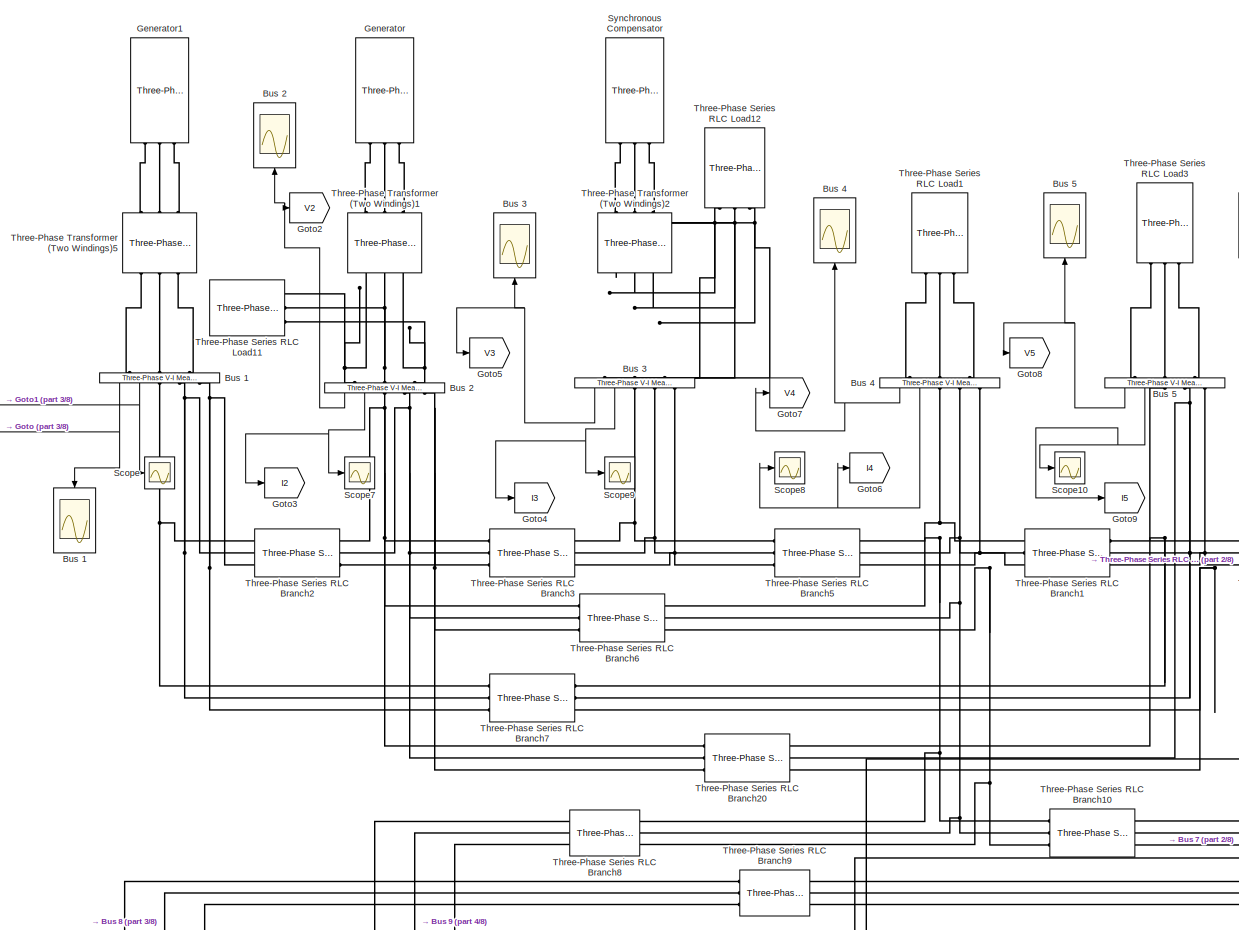
[diagram: root canvas - part 1/8, top center region]
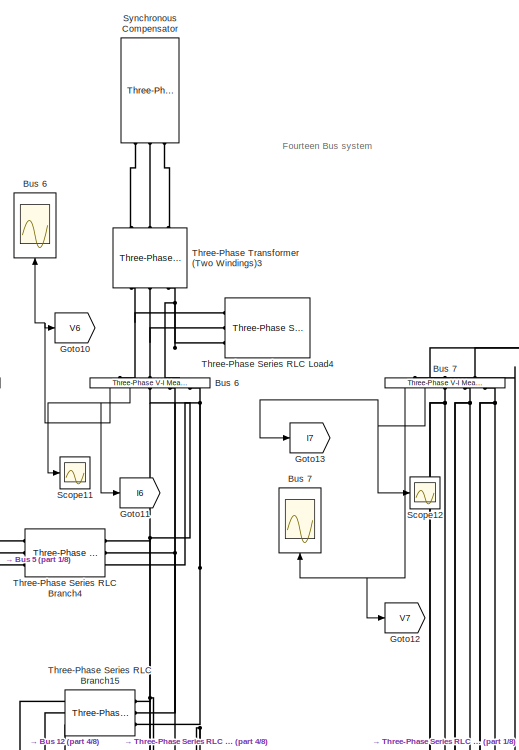
[diagram: root canvas - part 2/8, top right region]
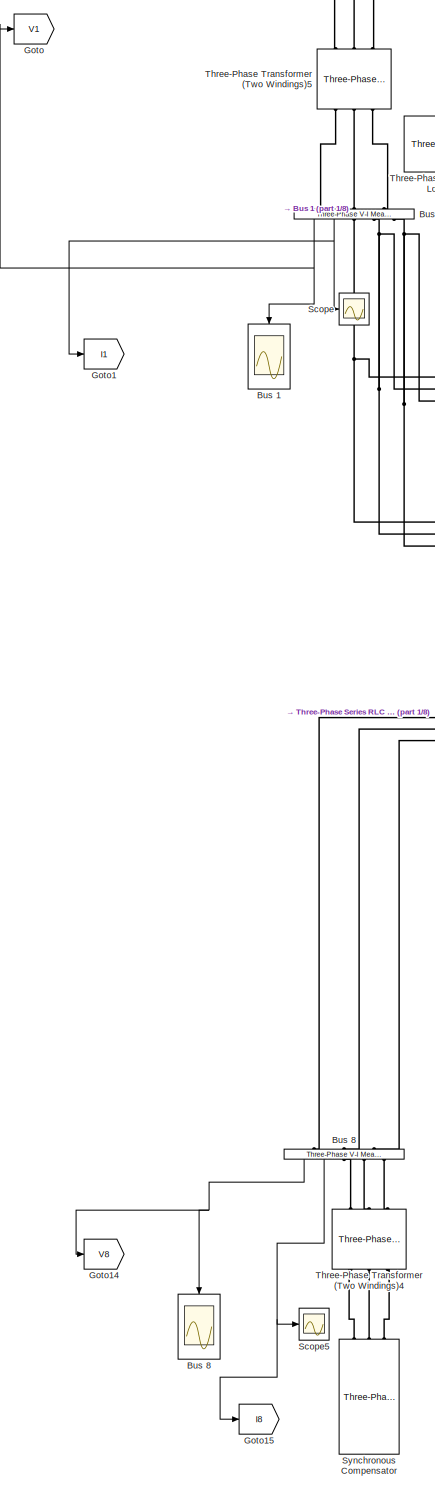
[diagram: root canvas - part 3/8, central region]
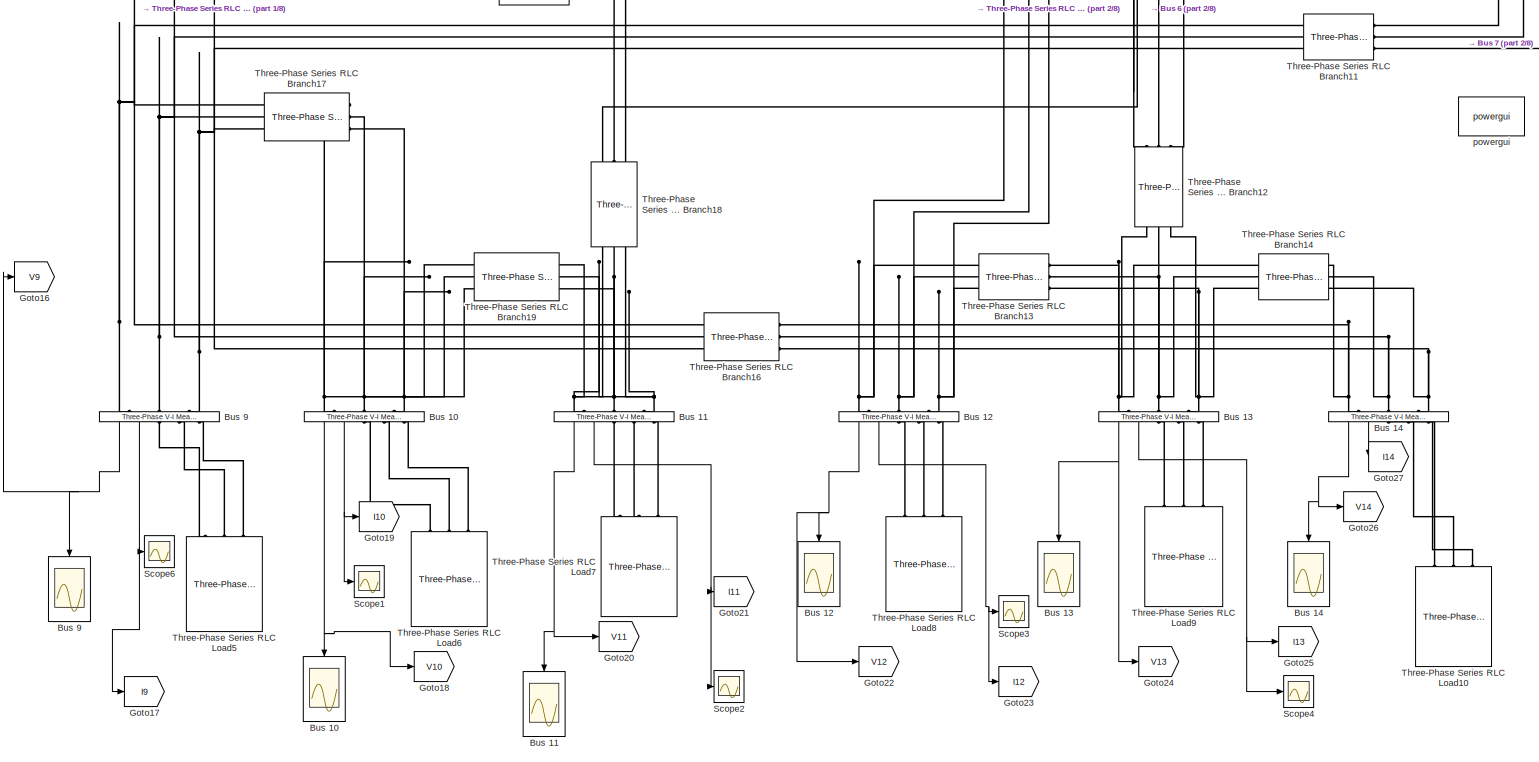
[diagram: root canvas - part 4/8, middle right region]
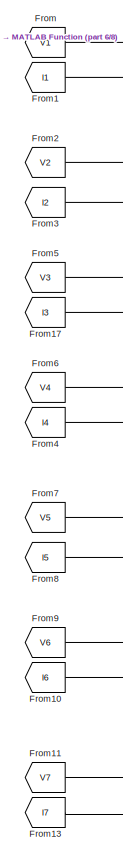
[diagram: root canvas - part 5/8, middle left region]
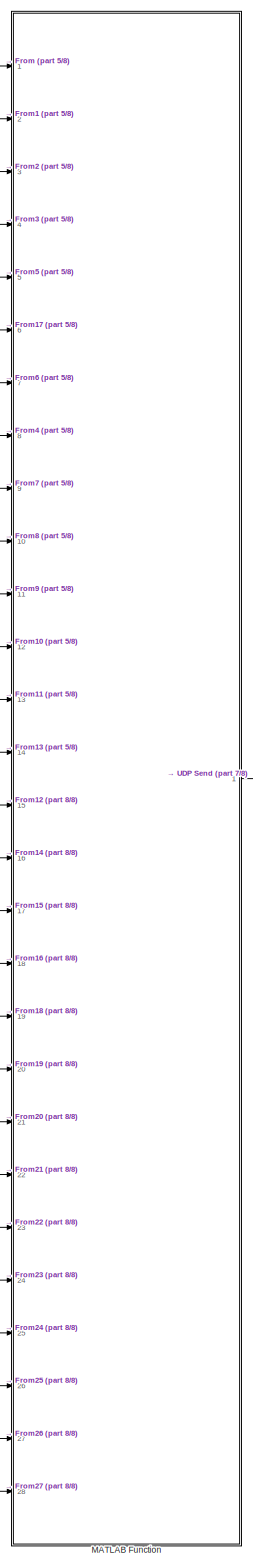
[diagram: root canvas - part 6/8, bottom left region]
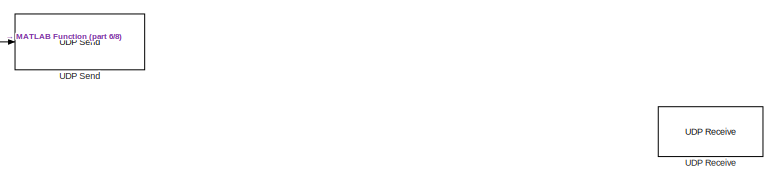
[diagram: root canvas - part 7/8, bottom center region]
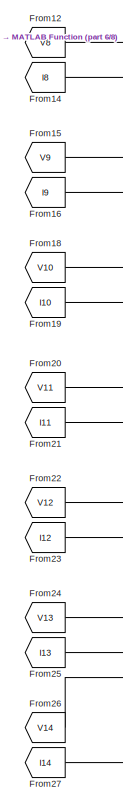
[diagram: root canvas - part 8/8, bottom left region]
MODEL slx_5748d40189d6
KIND model
CONFIG AbsTol = 1e-6
CONFIG EnableMultiTasking = on
CONFIG FixedStep = 0.2
CONFIG MaxStep = auto
CONFIG MinStep = auto
CONFIG RelTol = 1e-4
CONFIG SampleTimeConstraint = Unconstrained
CONFIG SolverName = ode23t
CONFIG StartTime = 0.0
CONFIG StopTime = 200
BLOCK [Reference]  Generator  REF=spsThreePhaseSourceLib/Three-Phase Source
  NameLocation = left
  Ports = [0, 0, 0, 0, 0, 0, 3]
  SourceBlock = spsThreePhaseSourceLib/Three-Phase Source
  SourceProductBaseCode = PS
  SourceType = Three-Phase Source
BLOCK [Reference]  Generator1  REF=spsThreePhaseSourceLib/Three-Phase Source
  NameLocation = left
  Ports = [0, 0, 0, 0, 0, 0, 3]
  SourceBlock = spsThreePhaseSourceLib/Three-Phase Source
  SourceProductBaseCode = PS
  SourceType = Three-Phase Source
BLOCK [Scope] Bus 1
  Floating = off
  NameLocation = right
  NumInputPorts = 1
  Ports = [1]
  ScopeSpecificationString = Simulink.scopes.TimeScopeBlockCfg('CurrentConfiguration', extmgr.ConfigurationSet(extmgr.Configuration('Core','General UI',true),extmgr.Configuration('Core','Source UI',true),extmgr.Configuration('Sources','WiredSimulink',true,'DataLoggingSaveFormat','StructureWithTime','DataLoggingLimitDataPoints',true,'DataLoggingDecimation','1','DataLoggingDecimateData',true),extmgr.Configuration('Visuals','Tim...<+1721ch>
BLOCK [Reference] Bus 1   REF=spsThreePhaseVIMeasurementLib/Three-Phase
V-I Measurement
  NameLocation = left
  Ports = [0, 2, 0, 0, 0, 3, 3]
  SourceBlock = spsThreePhaseVIMeasurementLib/Three-Phase\nV-I Measurement
  SourceProductBaseCode = PS
  SourceType = Three-Phase VI Measurement
BLOCK [Scope] Bus 10
  Floating = off
  NameLocation = right
  NumInputPorts = 1
  Ports = [1]
  ScopeSpecificationString = Simulink.scopes.TimeScopeBlockCfg('CurrentConfiguration', extmgr.ConfigurationSet(extmgr.Configuration('Core','General UI',true),extmgr.Configuration('Core','Source UI',true),extmgr.Configuration('Sources','WiredSimulink',true,'DataLoggingVariableName','ScopeData9','DataLoggingSaveFormat','StructureWithTime','DataLoggingLimitDataPoints',true,'DataLoggingDecimation','1','DataLoggingDecimateData',tr...<+1688ch>
BLOCK [Reference] Bus 10   REF=spsThreePhaseVIMeasurementLib/Three-Phase
V-I Measurement
  NameLocation = left
  Ports = [0, 2, 0, 0, 0, 3, 3]
  SourceBlock = spsThreePhaseVIMeasurementLib/Three-Phase\nV-I Measurement
  SourceProductBaseCode = PS
  SourceType = Three-Phase VI Measurement
BLOCK [Scope] Bus 11
  Floating = off
  NameLocation = right
  NumInputPorts = 1
  Ports = [1]
  ScopeSpecificationString = Simulink.scopes.TimeScopeBlockCfg('CurrentConfiguration', extmgr.ConfigurationSet(extmgr.Configuration('Core','General UI',true),extmgr.Configuration('Core','Source UI',true),extmgr.Configuration('Sources','WiredSimulink',true,'DataLoggingVariableName','ScopeData10','DataLoggingSaveFormat','StructureWithTime','DataLoggingLimitDataPoints',true,'DataLoggingDecimation','1','DataLoggingDecimateData',t...<+1716ch>
BLOCK [Reference] Bus 11   REF=spsThreePhaseVIMeasurementLib/Three-Phase
V-I Measurement
  NameLocation = left
  Ports = [0, 2, 0, 0, 0, 3, 3]
  SourceBlock = spsThreePhaseVIMeasurementLib/Three-Phase\nV-I Measurement
  SourceProductBaseCode = PS
  SourceType = Three-Phase VI Measurement
BLOCK [Scope] Bus 12
  Floating = off
  NameLocation = right
  NumInputPorts = 1
  Ports = [1]
  ScopeSpecificationString = C++SS(StrPVP('Location','[946, 356, 1571, 701]'),StrPVP('Open','off'),MxPVP('AxesTitles',54,'struct(''axes1'',''%<SignalLabel>'')'),MxPVP('ScopeGraphics',57,'struct(''FigureColor'',''[0.5 0.5 0.5]'',''AxesColor'',''[0 0 0]'',''AxesTickColor'',''[1 1 1]'',''LineColors'',''[1 1 0;1 0 1;0 1 1;1 0 0;0 1 0;0 0 1]'',''LineStyles'',''-|-|-|-|-|-'',''LineWidths'',''[0.5 0.5 0.5 0.5 0.5 0.5]'',''MarkerStyl...<+317ch>
BLOCK [Reference] Bus 12   REF=spsThreePhaseVIMeasurementLib/Three-Phase
V-I Measurement
  NameLocation = left
  Ports = [0, 2, 0, 0, 0, 3, 3]
  SourceBlock = spsThreePhaseVIMeasurementLib/Three-Phase\nV-I Measurement
  SourceProductBaseCode = PS
  SourceType = Three-Phase VI Measurement
BLOCK [Scope] Bus 13
  Floating = off
  NameLocation = right
  NumInputPorts = 1
  Ports = [1]
  ScopeSpecificationString = C++SS(StrPVP('Location','[1154, 516, 1786, 914]'),StrPVP('Open','off'),MxPVP('AxesTitles',54,'struct(''axes1'',''%<SignalLabel>'')'),MxPVP('ScopeGraphics',57,'struct(''FigureColor'',''[0.5 0.5 0.5]'',''AxesColor'',''[0 0 0]'',''AxesTickColor'',''[1 1 1]'',''LineColors'',''[1 1 0;1 0 1;0 1 1;1 0 0;0 1 0;0 0 1]'',''LineStyles'',''-|-|-|-|-|-'',''LineWidths'',''[0.5 0.5 0.5 0.5 0.5 0.5]'',''MarkerSty...<+318ch>
BLOCK [Reference] Bus 13   REF=spsThreePhaseVIMeasurementLib/Three-Phase
V-I Measurement
  NameLocation = left
  Ports = [0, 2, 0, 0, 0, 3, 3]
  SourceBlock = spsThreePhaseVIMeasurementLib/Three-Phase\nV-I Measurement
  SourceProductBaseCode = PS
  SourceType = Three-Phase VI Measurement
BLOCK [Scope] Bus 14
  Floating = off
  NameLocation = right
  NumInputPorts = 1
  Ports = [1]
  ScopeSpecificationString = Simulink.scopes.TimeScopeBlockCfg('CurrentConfiguration', extmgr.ConfigurationSet(extmgr.Configuration('Core','General UI',true),extmgr.Configuration('Core','Source UI',true),extmgr.Configuration('Sources','WiredSimulink',true,'DataLoggingVariableName','ScopeData13','DataLoggingSaveFormat','StructureWithTime','DataLoggingLimitDataPoints',true,'DataLoggingDecimation','1','DataLoggingDecimateData',t...<+1694ch>
BLOCK [Reference] Bus 14   REF=spsThreePhaseVIMeasurementLib/Three-Phase
V-I Measurement
  NameLocation = left
  Ports = [0, 2, 0, 0, 0, 3, 3]
  SourceBlock = spsThreePhaseVIMeasurementLib/Three-Phase\nV-I Measurement
  SourceProductBaseCode = PS
  SourceType = Three-Phase VI Measurement
BLOCK [Scope] Bus 2
  Floating = off
  NameLocation = left
  NumInputPorts = 1
  Ports = [1]
  ScopeSpecificationString = C++SS(StrPVP('Location','[705, 258, 1331, 605]'),StrPVP('Open','off'),MxPVP('AxesTitles',54,'struct(''axes1'',''%<SignalLabel>'')'),MxPVP('ScopeGraphics',57,'struct(''FigureColor'',''[0.5 0.5 0.5]'',''AxesColor'',''[0 0 0]'',''AxesTickColor'',''[1 1 1]'',''LineColors'',''[1 1 0;1 0 1;0 1 1;1 0 0;0 1 0;0 0 1]'',''LineStyles'',''-|-|-|-|-|-'',''LineWidths'',''[0.5 0.5 0.5 0.5 0.5 0.5]'',''MarkerStyl...<+316ch>
BLOCK [Reference] Bus 2   REF=spsThreePhaseVIMeasurementLib/Three-Phase
V-I Measurement
  NameLocation = left
  Ports = [0, 2, 0, 0, 0, 3, 3]
  SourceBlock = spsThreePhaseVIMeasurementLib/Three-Phase\nV-I Measurement
  SourceProductBaseCode = PS
  SourceType = Three-Phase VI Measurement
BLOCK [Scope] Bus 3
  Floating = off
  NameLocation = left
  NumInputPorts = 1
  Ports = [1]
  ScopeSpecificationString = C++SS(StrPVP('Location','[896, 261, 1522, 608]'),StrPVP('Open','off'),MxPVP('AxesTitles',54,'struct(''axes1'',''%<SignalLabel>'')'),MxPVP('ScopeGraphics',57,'struct(''FigureColor'',''[0.5 0.5 0.5]'',''AxesColor'',''[0 0 0]'',''AxesTickColor'',''[1 1 1]'',''LineColors'',''[1 1 0;1 0 1;0 1 1;1 0 0;0 1 0;0 0 1]'',''LineStyles'',''-|-|-|-|-|-'',''LineWidths'',''[0.5 0.5 0.5 0.5 0.5 0.5]'',''MarkerStyl...<+316ch>
BLOCK [Reference] Bus 3   REF=spsThreePhaseVIMeasurementLib/Three-Phase
V-I Measurement
  NameLocation = left
  Ports = [0, 2, 0, 0, 0, 3, 3]
  SourceBlock = spsThreePhaseVIMeasurementLib/Three-Phase\nV-I Measurement
  SourceProductBaseCode = PS
  SourceType = Three-Phase VI Measurement
BLOCK [Scope] Bus 4
  Floating = off
  NameLocation = left
  NumInputPorts = 1
  Ports = [1]
  ScopeSpecificationString = C++SS(StrPVP('Location','[1004, 339, 1665, 700]'),StrPVP('Open','off'),MxPVP('AxesTitles',54,'struct(''axes1'',''%<SignalLabel>'')'),MxPVP('ScopeGraphics',57,'struct(''FigureColor'',''[0.5 0.5 0.5]'',''AxesColor'',''[0 0 0]'',''AxesTickColor'',''[1 1 1]'',''LineColors'',''[1 1 0;1 0 1;0 1 1;1 0 0;0 1 0;0 0 1]'',''LineStyles'',''-|-|-|-|-|-'',''LineWidths'',''[0.5 0.5 0.5 0.5 0.5 0.5]'',''MarkerSty...<+317ch>
BLOCK [Reference] Bus 4   REF=spsThreePhaseVIMeasurementLib/Three-Phase
V-I Measurement
  NameLocation = left
  Ports = [0, 2, 0, 0, 0, 3, 3]
  SourceBlock = spsThreePhaseVIMeasurementLib/Three-Phase\nV-I Measurement
  SourceProductBaseCode = PS
  SourceType = Three-Phase VI Measurement
BLOCK [Scope] Bus 5
  Floating = off
  NameLocation = left
  NumInputPorts = 1
  Ports = [1]
  ScopeSpecificationString = C++SS(StrPVP('Location','[948, 274, 1699, 685]'),StrPVP('Open','off'),StrPVP('ZoomMode','yonly'),MxPVP('AxesTitles',54,'struct(''axes1'',''%<SignalLabel>'')'),MxPVP('ScopeGraphics',57,'struct(''FigureColor'',''[0.5 0.5 0.5]'',''AxesColor'',''[0 0 0]'',''AxesTickColor'',''[1 1 1]'',''LineColors'',''[1 1 0;1 0 1;0 1 1;1 0 0;0 1 0;0 0 1]'',''LineStyles'',''-|-|-|-|-|-'',''LineWidths'',''[0.5 0.5 0.5 ...<+340ch>
BLOCK [Reference] Bus 5   REF=spsThreePhaseVIMeasurementLib/Three-Phase
V-I Measurement
  NameLocation = left
  Ports = [0, 2, 0, 0, 0, 3, 3]
  SourceBlock = spsThreePhaseVIMeasurementLib/Three-Phase\nV-I Measurement
  SourceProductBaseCode = PS
  SourceType = Three-Phase VI Measurement
BLOCK [Scope] Bus 6
  Floating = off
  NameLocation = left
  NumInputPorts = 1
  Ports = [1]
  ScopeSpecificationString = C++SS(StrPVP('Location','[854, 331, 1480, 678]'),StrPVP('Open','off'),MxPVP('AxesTitles',54,'struct(''axes1'',''%<SignalLabel>'')'),MxPVP('ScopeGraphics',57,'struct(''FigureColor'',''[0.5 0.5 0.5]'',''AxesColor'',''[0 0 0]'',''AxesTickColor'',''[1 1 1]'',''LineColors'',''[1 1 0;1 0 1;0 1 1;1 0 0;0 1 0;0 0 1]'',''LineStyles'',''-|-|-|-|-|-'',''LineWidths'',''[0.5 0.5 0.5 0.5 0.5 0.5]'',''MarkerStyl...<+316ch>
BLOCK [Reference] Bus 6   REF=spsThreePhaseVIMeasurementLib/Three-Phase
V-I Measurement
  NameLocation = left
  Ports = [0, 2, 0, 0, 0, 3, 3]
  SourceBlock = spsThreePhaseVIMeasurementLib/Three-Phase\nV-I Measurement
  SourceProductBaseCode = PS
  SourceType = Three-Phase VI Measurement
BLOCK [Scope] Bus 7
  Floating = off
  NameLocation = left
  NumInputPorts = 1
  Ports = [1]
  ScopeSpecificationString = Simulink.scopes.TimeScopeBlockCfg('CurrentConfiguration', extmgr.ConfigurationSet(extmgr.Configuration('Core','General UI',true),extmgr.Configuration('Core','Source UI',true),extmgr.Configuration('Sources','WiredSimulink',true,'DataLoggingVariableName','ScopeData4','DataLoggingSaveFormat','StructureWithTime','DataLoggingLimitDataPoints',true,'DataLoggingDecimation','1','DataLoggingDecimateData',tr...<+1772ch>
BLOCK [Reference] Bus 7   REF=spsThreePhaseVIMeasurementLib/Three-Phase
V-I Measurement
  NameLocation = left
  Ports = [0, 2, 0, 0, 0, 3, 3]
  SourceBlock = spsThreePhaseVIMeasurementLib/Three-Phase\nV-I Measurement
  SourceProductBaseCode = PS
  SourceType = Three-Phase VI Measurement
BLOCK [Scope] Bus 8
  Floating = off
  NameLocation = right
  NumInputPorts = 1
  Ports = [1]
  ScopeSpecificationString = C++SS(StrPVP('Location','[844, 301, 1523, 604]'),StrPVP('Open','off'),MxPVP('AxesTitles',54,'struct(''axes1'',''%<SignalLabel>'')'),MxPVP('ScopeGraphics',57,'struct(''FigureColor'',''[0.5 0.5 0.5]'',''AxesColor'',''[0 0 0]'',''AxesTickColor'',''[1 1 1]'',''LineColors'',''[1 1 0;1 0 1;0 1 1;1 0 0;0 1 0;0 0 1]'',''LineStyles'',''-|-|-|-|-|-'',''LineWidths'',''[0.5 0.5 0.5 0.5 0.5 0.5]'',''MarkerStyl...<+314ch>
BLOCK [Reference] Bus 8   REF=spsThreePhaseVIMeasurementLib/Three-Phase
V-I Measurement
  NameLocation = left
  Ports = [0, 2, 0, 0, 0, 3, 3]
  SourceBlock = spsThreePhaseVIMeasurementLib/Three-Phase\nV-I Measurement
  SourceProductBaseCode = PS
  SourceType = Three-Phase VI Measurement
BLOCK [Scope] Bus 9
  Floating = off
  NameLocation = right
  NumInputPorts = 1
  Ports = [1]
  ScopeSpecificationString = C++SS(StrPVP('Location','[942, 345, 1517, 665]'),StrPVP('Open','off'),MxPVP('AxesTitles',54,'struct(''axes1'',''%<SignalLabel>'')'),MxPVP('ScopeGraphics',57,'struct(''FigureColor'',''[0.5 0.5 0.5]'',''AxesColor'',''[0 0 0]'',''AxesTickColor'',''[1 1 1]'',''LineColors'',''[1 1 0;1 0 1;0 1 1;1 0 0;0 1 0;0 0 1]'',''LineStyles'',''-|-|-|-|-|-'',''LineWidths'',''[0.5 0.5 0.5 0.5 0.5 0.5]'',''MarkerStyl...<+312ch>
BLOCK [Reference] Bus 9   REF=spsThreePhaseVIMeasurementLib/Three-Phase
V-I Measurement
  NameLocation = left
  Ports = [0, 2, 0, 0, 0, 3, 3]
  SourceBlock = spsThreePhaseVIMeasurementLib/Three-Phase\nV-I Measurement
  SourceProductBaseCode = PS
  SourceType = Three-Phase VI Measurement
BLOCK [From] From
  GotoTag = V1
BLOCK [From] From1
  GotoTag = I1
BLOCK [From] From10
  GotoTag = I6
BLOCK [From] From11
  GotoTag = V7
BLOCK [From] From12
  GotoTag = V8
BLOCK [From] From13
  GotoTag = I7
BLOCK [From] From14
  GotoTag = I8
BLOCK [From] From15
  GotoTag = V9
BLOCK [From] From16
  GotoTag = I9
BLOCK [From] From17
  GotoTag = I3
BLOCK [From] From18
  GotoTag = V10
BLOCK [From] From19
  GotoTag = I10
BLOCK [From] From2
  GotoTag = V2
BLOCK [From] From20
  GotoTag = V11
BLOCK [From] From21
  GotoTag = I11
BLOCK [From] From22
  GotoTag = V12
BLOCK [From] From23
  GotoTag = I12
BLOCK [From] From24
  GotoTag = V13
BLOCK [From] From25
  GotoTag = I13
BLOCK [From] From26
  GotoTag = V14
BLOCK [From] From27
  GotoTag = I14
BLOCK [From] From3
  GotoTag = I2
BLOCK [From] From4
  GotoTag = I4
BLOCK [From] From5
  GotoTag = V3
BLOCK [From] From6
  GotoTag = V4
BLOCK [From] From7
  GotoTag = V5
BLOCK [From] From8
  GotoTag = I5
BLOCK [From] From9
  GotoTag = V6
BLOCK [Goto] Goto
  GotoTag = V1
BLOCK [Goto] Goto1
  GotoTag = I1
BLOCK [Goto] Goto10
  GotoTag = V6
BLOCK [Goto] Goto11
  GotoTag = I6
BLOCK [Goto] Goto12
  GotoTag = V7
BLOCK [Goto] Goto13
  GotoTag = I7
BLOCK [Goto] Goto14
  GotoTag = V8
BLOCK [Goto] Goto15
  GotoTag = I8
BLOCK [Goto] Goto16
  GotoTag = V9
BLOCK [Goto] Goto17
  GotoTag = I9
BLOCK [Goto] Goto18
  GotoTag = V10
BLOCK [Goto] Goto19
  GotoTag = I10
BLOCK [Goto] Goto2
  GotoTag = V2
BLOCK [Goto] Goto20
  GotoTag = V11
BLOCK [Goto] Goto21
  GotoTag = I11
BLOCK [Goto] Goto22
  GotoTag = V12
BLOCK [Goto] Goto23
  GotoTag = I12
BLOCK [Goto] Goto24
  GotoTag = V13
BLOCK [Goto] Goto25
  GotoTag = I13
BLOCK [Goto] Goto26
  GotoTag = V14
BLOCK [Goto] Goto27
  GotoTag = I14
BLOCK [Goto] Goto3
  GotoTag = I2
BLOCK [Goto] Goto4
  GotoTag = I3
BLOCK [Goto] Goto5
  GotoTag = V3
BLOCK [Goto] Goto6
  GotoTag = I4
BLOCK [Goto] Goto7
  GotoTag = V4
BLOCK [Goto] Goto8
  GotoTag = V5
BLOCK [Goto] Goto9
  GotoTag = I5
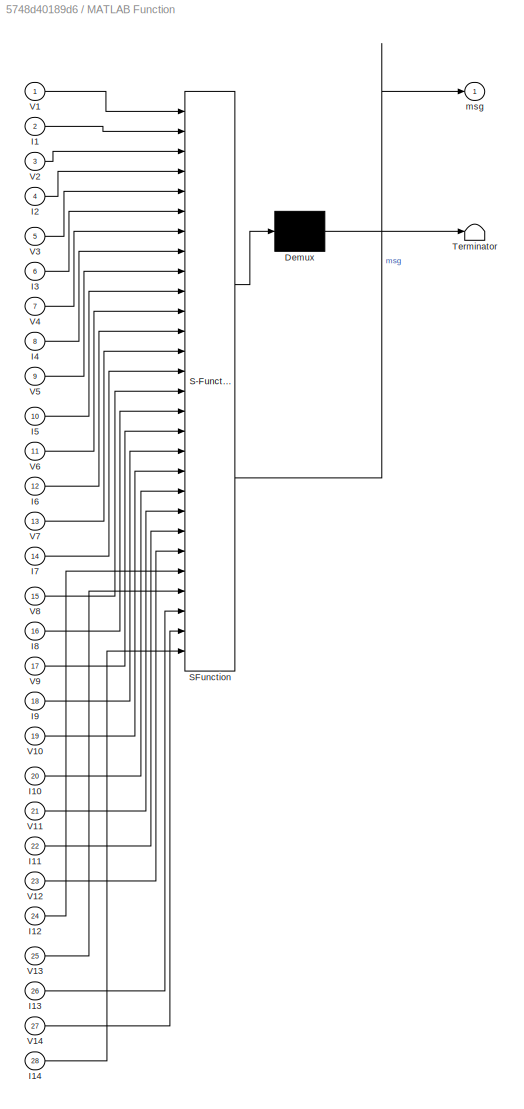
BLOCK [SubSystem] MATLAB Function
  ErrorFcn = Stateflow.Translate.translate
  PermitHierarchicalResolution = ExplicitOnly
  Ports = [28, 1]
  RequestExecContextInheritance = off
  SFBlockType = MATLAB Function
  TreatAsAtomicUnit = on
BLOCK [Demux] MATLAB Function/ Demux 
  Outputs = 1
  Ports = [1, 1]
BLOCK [S-Function] MATLAB Function/ SFunction 
  EnableBusSupport = on
  FunctionName = sf_sfun
  PortCounts = [28 2]
  Ports = [28, 2]
  SFcnIsStateOwnerBlock = off
  SFunctionDeploymentMode = off
  Tag = Stateflow S-Function 2
BLOCK [Terminator] MATLAB Function/ Terminator 
BLOCK [Inport] MATLAB Function/I1
  Port = 2
BLOCK [Inport] MATLAB Function/I10
  Port = 20
BLOCK [Inport] MATLAB Function/I11
  Port = 22
BLOCK [Inport] MATLAB Function/I12
  Port = 24
BLOCK [Inport] MATLAB Function/I13
  Port = 26
BLOCK [Inport] MATLAB Function/I14
  Port = 28
BLOCK [Inport] MATLAB Function/I2
  Port = 4
BLOCK [Inport] MATLAB Function/I3
  Port = 6
BLOCK [Inport] MATLAB Function/I4
  Port = 8
BLOCK [Inport] MATLAB Function/I5
  Port = 10
BLOCK [Inport] MATLAB Function/I6
  Port = 12
BLOCK [Inport] MATLAB Function/I7
  Port = 14
BLOCK [Inport] MATLAB Function/I8
  Port = 16
BLOCK [Inport] MATLAB Function/I9
  Port = 18
BLOCK [Inport] MATLAB Function/V1
BLOCK [Inport] MATLAB Function/V10
  Port = 19
BLOCK [Inport] MATLAB Function/V11
  Port = 21
BLOCK [Inport] MATLAB Function/V12
  Port = 23
BLOCK [Inport] MATLAB Function/V13
  Port = 25
BLOCK [Inport] MATLAB Function/V14
  Port = 27
BLOCK [Inport] MATLAB Function/V2
  Port = 3
BLOCK [Inport] MATLAB Function/V3
  Port = 5
BLOCK [Inport] MATLAB Function/V4
  Port = 7
BLOCK [Inport] MATLAB Function/V5
  Port = 9
BLOCK [Inport] MATLAB Function/V6
  Port = 11
BLOCK [Inport] MATLAB Function/V7
  Port = 13
BLOCK [Inport] MATLAB Function/V8
  Port = 15
BLOCK [Inport] MATLAB Function/V9
  Port = 17
BLOCK [Outport] MATLAB Function/msg
BLOCK [Scope] Scope
  Floating = off
  NumInputPorts = 1
  Ports = [1]
  ScopeSpecificationString = Simulink.scopes.TimeScopeBlockCfg('CurrentConfiguration', extmgr.ConfigurationSet(extmgr.Configuration('Core','General UI',true),extmgr.Configuration('Core','Source UI',true),extmgr.Configuration('Sources','WiredSimulink',true,'DataLoggingVariableName','ScopeData14'),extmgr.Configuration('Visuals','Time Domain',true),extmgr.Configuration('Tools','Plot Navigation',true),extmgr.Configuration('Tools'...<+41ch>
BLOCK [Scope] Scope1
  Floating = off
  NumInputPorts = 1
  Ports = [1]
  ScopeSpecificationString = Simulink.scopes.TimeScopeBlockCfg('CurrentConfiguration', extmgr.ConfigurationSet(extmgr.Configuration('Core','General UI',true),extmgr.Configuration('Core','Source UI',true),extmgr.Configuration('Sources','WiredSimulink',true,'DataLoggingVariableName','ScopeData15'),extmgr.Configuration('Visuals','Time Domain',true),extmgr.Configuration('Tools','Plot Navigation',true),extmgr.Configuration('Tools'...<+41ch>
BLOCK [Scope] Scope10
  Floating = off
  NumInputPorts = 1
  Ports = [1]
  ScopeSpecificationString = Simulink.scopes.TimeScopeBlockCfg('CurrentConfiguration', extmgr.ConfigurationSet(extmgr.Configuration('Core','General UI',true),extmgr.Configuration('Core','Source UI',true),extmgr.Configuration('Sources','WiredSimulink',true,'DataLoggingVariableName','ScopeData24'),extmgr.Configuration('Visuals','Time Domain',true),extmgr.Configuration('Tools','Plot Navigation',true),extmgr.Configuration('Tools'...<+41ch>
BLOCK [Scope] Scope11
  Floating = off
  NumInputPorts = 1
  Ports = [1]
  ScopeSpecificationString = Simulink.scopes.TimeScopeBlockCfg('CurrentConfiguration', extmgr.ConfigurationSet(extmgr.Configuration('Core','General UI',true),extmgr.Configuration('Core','Source UI',true),extmgr.Configuration('Sources','WiredSimulink',true,'DataLoggingVariableName','ScopeData25'),extmgr.Configuration('Visuals','Time Domain',true),extmgr.Configuration('Tools','Plot Navigation',true),extmgr.Configuration('Tools'...<+41ch>
BLOCK [Scope] Scope12
  Floating = off
  NumInputPorts = 1
  Ports = [1]
  ScopeSpecificationString = Simulink.scopes.TimeScopeBlockCfg('CurrentConfiguration', extmgr.ConfigurationSet(extmgr.Configuration('Core','General UI',true),extmgr.Configuration('Core','Source UI',true),extmgr.Configuration('Sources','WiredSimulink',true,'DataLoggingVariableName','ScopeData26'),extmgr.Configuration('Visuals','Time Domain',true),extmgr.Configuration('Tools','Plot Navigation',true),extmgr.Configuration('Tools'...<+41ch>
BLOCK [Scope] Scope2
  Floating = off
  NumInputPorts = 1
  Ports = [1]
  ScopeSpecificationString = Simulink.scopes.TimeScopeBlockCfg('CurrentConfiguration', extmgr.ConfigurationSet(extmgr.Configuration('Core','General UI',true),extmgr.Configuration('Core','Source UI',true),extmgr.Configuration('Sources','WiredSimulink',true,'DataLoggingVariableName','ScopeData16'),extmgr.Configuration('Visuals','Time Domain',true),extmgr.Configuration('Tools','Plot Navigation',true),extmgr.Configuration('Tools'...<+41ch>
BLOCK [Scope] Scope3
  Floating = off
  NumInputPorts = 1
  Ports = [1]
  ScopeSpecificationString = Simulink.scopes.TimeScopeBlockCfg('CurrentConfiguration', extmgr.ConfigurationSet(extmgr.Configuration('Core','General UI',true),extmgr.Configuration('Core','Source UI',true),extmgr.Configuration('Sources','WiredSimulink',true,'DataLoggingVariableName','ScopeData17'),extmgr.Configuration('Visuals','Time Domain',true),extmgr.Configuration('Tools','Plot Navigation',true),extmgr.Configuration('Tools'...<+41ch>
BLOCK [Scope] Scope4
  Floating = off
  NumInputPorts = 1
  Ports = [1]
  ScopeSpecificationString = Simulink.scopes.TimeScopeBlockCfg('CurrentConfiguration', extmgr.ConfigurationSet(extmgr.Configuration('Core','General UI',true),extmgr.Configuration('Core','Source UI',true),extmgr.Configuration('Sources','WiredSimulink',true,'DataLoggingVariableName','ScopeData18'),extmgr.Configuration('Visuals','Time Domain',true),extmgr.Configuration('Tools','Plot Navigation',true),extmgr.Configuration('Tools'...<+41ch>
BLOCK [Scope] Scope5
  Floating = off
  NumInputPorts = 1
  Ports = [1]
  ScopeSpecificationString = Simulink.scopes.TimeScopeBlockCfg('CurrentConfiguration', extmgr.ConfigurationSet(extmgr.Configuration('Core','General UI',true),extmgr.Configuration('Core','Source UI',true),extmgr.Configuration('Sources','WiredSimulink',true,'DataLoggingVariableName','ScopeData19'),extmgr.Configuration('Visuals','Time Domain',true),extmgr.Configuration('Tools','Plot Navigation',true),extmgr.Configuration('Tools'...<+41ch>
BLOCK [Scope] Scope6
  Floating = off
  NumInputPorts = 1
  Ports = [1]
  ScopeSpecificationString = Simulink.scopes.TimeScopeBlockCfg('CurrentConfiguration', extmgr.ConfigurationSet(extmgr.Configuration('Core','General UI',true),extmgr.Configuration('Core','Source UI',true),extmgr.Configuration('Sources','WiredSimulink',true,'DataLoggingVariableName','ScopeData20'),extmgr.Configuration('Visuals','Time Domain',true),extmgr.Configuration('Tools','Plot Navigation',true),extmgr.Configuration('Tools'...<+41ch>
BLOCK [Scope] Scope7
  Floating = off
  NumInputPorts = 1
  Ports = [1]
  ScopeSpecificationString = Simulink.scopes.TimeScopeBlockCfg('CurrentConfiguration', extmgr.ConfigurationSet(extmgr.Configuration('Core','General UI',true),extmgr.Configuration('Core','Source UI',true),extmgr.Configuration('Sources','WiredSimulink',true,'DataLoggingVariableName','ScopeData21'),extmgr.Configuration('Visuals','Time Domain',true),extmgr.Configuration('Tools','Plot Navigation',true),extmgr.Configuration('Tools'...<+41ch>
BLOCK [Scope] Scope8
  Floating = off
  NumInputPorts = 1
  Ports = [1]
  ScopeSpecificationString = Simulink.scopes.TimeScopeBlockCfg('CurrentConfiguration', extmgr.ConfigurationSet(extmgr.Configuration('Core','General UI',true),extmgr.Configuration('Core','Source UI',true),extmgr.Configuration('Sources','WiredSimulink',true,'DataLoggingVariableName','ScopeData22'),extmgr.Configuration('Visuals','Time Domain',true),extmgr.Configuration('Tools','Plot Navigation',true),extmgr.Configuration('Tools'...<+41ch>
BLOCK [Scope] Scope9
  Floating = off
  NumInputPorts = 1
  Ports = [1]
  ScopeSpecificationString = Simulink.scopes.TimeScopeBlockCfg('CurrentConfiguration', extmgr.ConfigurationSet(extmgr.Configuration('Core','General UI',true),extmgr.Configuration('Core','Source UI',true),extmgr.Configuration('Sources','WiredSimulink',true,'DataLoggingVariableName','ScopeData23'),extmgr.Configuration('Visuals','Time Domain',true),extmgr.Configuration('Tools','Plot Navigation',true),extmgr.Configuration('Tools'...<+41ch>
BLOCK [Reference] Synchronous Compensator  REF=spsThreePhaseSourceLib/Three-Phase Source
  NameLocation = left
  Ports = [0, 0, 0, 0, 0, 0, 3]
  SourceBlock = spsThreePhaseSourceLib/Three-Phase Source
  SourceProductBaseCode = PS
  SourceType = Three-Phase Source
BLOCK [Reference] Synchronous Compensator   REF=spsThreePhaseSourceLib/Three-Phase Source
  NameLocation = left
  Ports = [0, 0, 0, 0, 0, 0, 3]
  SourceBlock = spsThreePhaseSourceLib/Three-Phase Source
  SourceProductBaseCode = PS
  SourceType = Three-Phase Source
BLOCK [Reference] Three-Phase Series RLC Branch1  REF=spsThreePhaseSeriesRLCBranchLib/Three-Phase
Series RLC Branch
  AttributesFormatString = \n
  NameLocation = top
  Ports = [0, 0, 0, 0, 0, 3, 3]
  SourceBlock = spsThreePhaseSeriesRLCBranchLib/Three-Phase\nSeries RLC Branch
  SourceProductBaseCode = PS
  SourceType = Three-Phase Series RLC Branch
BLOCK [Reference] Three-Phase Series RLC Branch10  REF=spsThreePhaseSeriesRLCBranchLib/Three-Phase
Series RLC Branch
  AttributesFormatString = \n
  NameLocation = top
  Ports = [0, 0, 0, 0, 0, 3, 3]
  SourceBlock = spsThreePhaseSeriesRLCBranchLib/Three-Phase\nSeries RLC Branch
  SourceProductBaseCode = PS
  SourceType = Three-Phase Series RLC Branch
BLOCK [Reference] Three-Phase Series RLC Branch11  REF=spsThreePhaseSeriesRLCBranchLib/Three-Phase
Series RLC Branch
  AttributesFormatString = \n
  Ports = [0, 0, 0, 0, 0, 3, 3]
  SourceBlock = spsThreePhaseSeriesRLCBranchLib/Three-Phase\nSeries RLC Branch
  SourceProductBaseCode = PS
  SourceType = Three-Phase Series RLC Branch
BLOCK [Reference] Three-Phase Series RLC Branch12  REF=spsThreePhaseSeriesRLCBranchLib/Three-Phase
Series RLC Branch
  AttributesFormatString = \n
  NameLocation = left
  Ports = [0, 0, 0, 0, 0, 3, 3]
  SourceBlock = spsThreePhaseSeriesRLCBranchLib/Three-Phase\nSeries RLC Branch
  SourceProductBaseCode = PS
  SourceType = Three-Phase Series RLC Branch
BLOCK [Reference] Three-Phase Series RLC Branch13  REF=spsThreePhaseSeriesRLCBranchLib/Three-Phase
Series RLC Branch
  AttributesFormatString = \n
  NameLocation = top
  Ports = [0, 0, 0, 0, 0, 3, 3]
  SourceBlock = spsThreePhaseSeriesRLCBranchLib/Three-Phase\nSeries RLC Branch
  SourceProductBaseCode = PS
  SourceType = Three-Phase Series RLC Branch
BLOCK [Reference] Three-Phase Series RLC Branch14  REF=spsThreePhaseSeriesRLCBranchLib/Three-Phase
Series RLC Branch
  AttributesFormatString = \n
  NameLocation = top
  Ports = [0, 0, 0, 0, 0, 3, 3]
  SourceBlock = spsThreePhaseSeriesRLCBranchLib/Three-Phase\nSeries RLC Branch
  SourceProductBaseCode = PS
  SourceType = Three-Phase Series RLC Branch
BLOCK [Reference] Three-Phase Series RLC Branch15  REF=spsThreePhaseSeriesRLCBranchLib/Three-Phase
Series RLC Branch
  AttributesFormatString = \n
  Ports = [0, 0, 0, 0, 0, 3, 3]
  SourceBlock = spsThreePhaseSeriesRLCBranchLib/Three-Phase\nSeries RLC Branch
  SourceProductBaseCode = PS
  SourceType = Three-Phase Series RLC Branch
BLOCK [Reference] Three-Phase Series RLC Branch16  REF=spsThreePhaseSeriesRLCBranchLib/Three-Phase
Series RLC Branch
  AttributesFormatString = \n
  NameLocation = top
  Ports = [0, 0, 0, 0, 0, 3, 3]
  SourceBlock = spsThreePhaseSeriesRLCBranchLib/Three-Phase\nSeries RLC Branch
  SourceProductBaseCode = PS
  SourceType = Three-Phase Series RLC Branch
BLOCK [Reference] Three-Phase Series RLC Branch17  REF=spsThreePhaseSeriesRLCBranchLib/Three-Phase
Series RLC Branch
  AttributesFormatString = \n
  Ports = [0, 0, 0, 0, 0, 3, 3]
  SourceBlock = spsThreePhaseSeriesRLCBranchLib/Three-Phase\nSeries RLC Branch
  SourceProductBaseCode = PS
  SourceType = Three-Phase Series RLC Branch
BLOCK [Reference] Three-Phase Series RLC Branch18  REF=spsThreePhaseSeriesRLCBranchLib/Three-Phase
Series RLC Branch
  AttributesFormatString = \n
  NameLocation = left
  Ports = [0, 0, 0, 0, 0, 3, 3]
  SourceBlock = spsThreePhaseSeriesRLCBranchLib/Three-Phase\nSeries RLC Branch
  SourceProductBaseCode = PS
  SourceType = Three-Phase Series RLC Branch
BLOCK [Reference] Three-Phase Series RLC Branch19  REF=spsThreePhaseSeriesRLCBranchLib/Three-Phase
Series RLC Branch
  AttributesFormatString = \n
  Ports = [0, 0, 0, 0, 0, 3, 3]
  SourceBlock = spsThreePhaseSeriesRLCBranchLib/Three-Phase\nSeries RLC Branch
  SourceProductBaseCode = PS
  SourceType = Three-Phase Series RLC Branch
BLOCK [Reference] Three-Phase Series RLC Branch2  REF=spsThreePhaseSeriesRLCBranchLib/Three-Phase
Series RLC Branch
  AttributesFormatString = \n
  NameLocation = top
  Ports = [0, 0, 0, 0, 0, 3, 3]
  SourceBlock = spsThreePhaseSeriesRLCBranchLib/Three-Phase\nSeries RLC Branch
  SourceProductBaseCode = PS
  SourceType = Three-Phase Series RLC Branch
BLOCK [Reference] Three-Phase Series RLC Branch20  REF=spsThreePhaseSeriesRLCBranchLib/Three-Phase
Series RLC Branch
  AttributesFormatString = \n
  NameLocation = top
  Ports = [0, 0, 0, 0, 0, 3, 3]
  SourceBlock = spsThreePhaseSeriesRLCBranchLib/Three-Phase\nSeries RLC Branch
  SourceProductBaseCode = PS
  SourceType = Three-Phase Series RLC Branch
BLOCK [Reference] Three-Phase Series RLC Branch3  REF=spsThreePhaseSeriesRLCBranchLib/Three-Phase
Series RLC Branch
  AttributesFormatString = \n
  NameLocation = top
  Ports = [0, 0, 0, 0, 0, 3, 3]
  SourceBlock = spsThreePhaseSeriesRLCBranchLib/Three-Phase\nSeries RLC Branch
  SourceProductBaseCode = PS
  SourceType = Three-Phase Series RLC Branch
BLOCK [Reference] Three-Phase Series RLC Branch4  REF=spsThreePhaseSeriesRLCBranchLib/Three-Phase
Series RLC Branch
  AttributesFormatString = \n
  NameLocation = top
  Ports = [0, 0, 0, 0, 0, 3, 3]
  SourceBlock = spsThreePhaseSeriesRLCBranchLib/Three-Phase\nSeries RLC Branch
  SourceProductBaseCode = PS
  SourceType = Three-Phase Series RLC Branch
BLOCK [Reference] Three-Phase Series RLC Branch5  REF=spsThreePhaseSeriesRLCBranchLib/Three-Phase
Series RLC Branch
  AttributesFormatString = \n
  NameLocation = top
  Ports = [0, 0, 0, 0, 0, 3, 3]
  SourceBlock = spsThreePhaseSeriesRLCBranchLib/Three-Phase\nSeries RLC Branch
  SourceProductBaseCode = PS
  SourceType = Three-Phase Series RLC Branch
BLOCK [Reference] Three-Phase Series RLC Branch6  REF=spsThreePhaseSeriesRLCBranchLib/Three-Phase
Series RLC Branch
  AttributesFormatString = \n
  NameLocation = top
  Ports = [0, 0, 0, 0, 0, 3, 3]
  SourceBlock = spsThreePhaseSeriesRLCBranchLib/Three-Phase\nSeries RLC Branch
  SourceProductBaseCode = PS
  SourceType = Three-Phase Series RLC Branch
BLOCK [Reference] Three-Phase Series RLC Branch7  REF=spsThreePhaseSeriesRLCBranchLib/Three-Phase
Series RLC Branch
  AttributesFormatString = \n
  NameLocation = top
  Ports = [0, 0, 0, 0, 0, 3, 3]
  SourceBlock = spsThreePhaseSeriesRLCBranchLib/Three-Phase\nSeries RLC Branch
  SourceProductBaseCode = PS
  SourceType = Three-Phase Series RLC Branch
BLOCK [Reference] Three-Phase Series RLC Branch8  REF=spsThreePhaseSeriesRLCBranchLib/Three-Phase
Series RLC Branch
  AttributesFormatString = \n
  NameLocation = top
  Ports = [0, 0, 0, 0, 0, 3, 3]
  SourceBlock = spsThreePhaseSeriesRLCBranchLib/Three-Phase\nSeries RLC Branch
  SourceProductBaseCode = PS
  SourceType = Three-Phase Series RLC Branch
BLOCK [Reference] Three-Phase Series RLC Branch9  REF=spsThreePhaseSeriesRLCBranchLib/Three-Phase
Series RLC Branch
  AttributesFormatString = \n
  NameLocation = top
  Ports = [0, 0, 0, 0, 0, 3, 3]
  SourceBlock = spsThreePhaseSeriesRLCBranchLib/Three-Phase\nSeries RLC Branch
  SourceProductBaseCode = PS
  SourceType = Three-Phase Series RLC Branch
BLOCK [Reference] Three-Phase Series RLC Load1  REF=spsThreePhaseSeriesRLCLoadLib/Three-Phase
Series RLC Load
  AttributesFormatString = \n
  NameLocation = left
  Ports = [0, 0, 0, 0, 0, 3]
  SourceBlock = spsThreePhaseSeriesRLCLoadLib/Three-Phase\nSeries RLC Load
  SourceProductBaseCode = PS
  SourceType = Three-Phase Series RLC Load
BLOCK [Reference] Three-Phase Series RLC Load10  REF=spsThreePhaseSeriesRLCLoadLib/Three-Phase
Series RLC Load
  AttributesFormatString = \n
  NameLocation = right
  Ports = [0, 0, 0, 0, 0, 3]
  SourceBlock = spsThreePhaseSeriesRLCLoadLib/Three-Phase\nSeries RLC Load
  SourceProductBaseCode = PS
  SourceType = Three-Phase Series RLC Load
BLOCK [Reference] Three-Phase Series RLC Load11  REF=spsThreePhaseSeriesRLCLoadLib/Three-Phase
Series RLC Load
  AttributesFormatString = \n
  Ports = [0, 0, 0, 0, 0, 3]
  SourceBlock = spsThreePhaseSeriesRLCLoadLib/Three-Phase\nSeries RLC Load
  SourceProductBaseCode = PS
  SourceType = Three-Phase Series RLC Load
BLOCK [Reference] Three-Phase Series RLC Load12  REF=spsThreePhaseSeriesRLCLoadLib/Three-Phase
Series RLC Load
  AttributesFormatString = \n
  NameLocation = left
  Ports = [0, 0, 0, 0, 0, 3]
  SourceBlock = spsThreePhaseSeriesRLCLoadLib/Three-Phase\nSeries RLC Load
  SourceProductBaseCode = PS
  SourceType = Three-Phase Series RLC Load
BLOCK [Reference] Three-Phase Series RLC Load3  REF=spsThreePhaseSeriesRLCLoadLib/Three-Phase
Series RLC Load
  AttributesFormatString = \n
  NameLocation = left
  Ports = [0, 0, 0, 0, 0, 3]
  SourceBlock = spsThreePhaseSeriesRLCLoadLib/Three-Phase\nSeries RLC Load
  SourceProductBaseCode = PS
  SourceType = Three-Phase Series RLC Load
BLOCK [Reference] Three-Phase Series RLC Load4  REF=spsThreePhaseSeriesRLCLoadLib/Three-Phase
Series RLC Load
  AttributesFormatString = \n
  NameLocation = top
  Ports = [0, 0, 0, 0, 0, 3]
  SourceBlock = spsThreePhaseSeriesRLCLoadLib/Three-Phase\nSeries RLC Load
  SourceProductBaseCode = PS
  SourceType = Three-Phase Series RLC Load
BLOCK [Reference] Three-Phase Series RLC Load5  REF=spsThreePhaseSeriesRLCLoadLib/Three-Phase
Series RLC Load
  AttributesFormatString = \n
  NameLocation = right
  Ports = [0, 0, 0, 0, 0, 3]
  SourceBlock = spsThreePhaseSeriesRLCLoadLib/Three-Phase\nSeries RLC Load
  SourceProductBaseCode = PS
  SourceType = Three-Phase Series RLC Load
BLOCK [Reference] Three-Phase Series RLC Load6  REF=spsThreePhaseSeriesRLCLoadLib/Three-Phase
Series RLC Load
  AttributesFormatString = \n
  NameLocation = right
  Ports = [0, 0, 0, 0, 0, 3]
  SourceBlock = spsThreePhaseSeriesRLCLoadLib/Three-Phase\nSeries RLC Load
  SourceProductBaseCode = PS
  SourceType = Three-Phase Series RLC Load
BLOCK [Reference] Three-Phase Series RLC Load7  REF=spsThreePhaseSeriesRLCLoadLib/Three-Phase
Series RLC Load
  AttributesFormatString = \n
  NameLocation = right
  Ports = [0, 0, 0, 0, 0, 3]
  SourceBlock = spsThreePhaseSeriesRLCLoadLib/Three-Phase\nSeries RLC Load
  SourceProductBaseCode = PS
  SourceType = Three-Phase Series RLC Load
BLOCK [Reference] Three-Phase Series RLC Load8  REF=spsThreePhaseSeriesRLCLoadLib/Three-Phase
Series RLC Load
  AttributesFormatString = \n
  NameLocation = right
  Ports = [0, 0, 0, 0, 0, 3]
  SourceBlock = spsThreePhaseSeriesRLCLoadLib/Three-Phase\nSeries RLC Load
  SourceProductBaseCode = PS
  SourceType = Three-Phase Series RLC Load
BLOCK [Reference] Three-Phase Series RLC Load9  REF=spsThreePhaseSeriesRLCLoadLib/Three-Phase
Series RLC Load
  AttributesFormatString = \n
  NameLocation = right
  Ports = [0, 0, 0, 0, 0, 3]
  SourceBlock = spsThreePhaseSeriesRLCLoadLib/Three-Phase\nSeries RLC Load
  SourceProductBaseCode = PS
  SourceType = Three-Phase Series RLC Load
BLOCK [Reference] Three-Phase Transformer (Two Windings)1  REF=spsThreePhaseTransformerTwoWindingsLib/Three-Phase
Transformer
(Two Windings)
  NameLocation = left
  Ports = [0, 0, 0, 0, 0, 3, 3]
  SourceBlock = spsThreePhaseTransformerTwoWindingsLib/Three-Phase\nTransformer\n(Two Windings)
  SourceProductBaseCode = PS
  SourceType = Three-Phase Transformer (Two Windings)
BLOCK [Reference] Three-Phase Transformer (Two Windings)2  REF=spsThreePhaseTransformerTwoWindingsLib/Three-Phase
Transformer
(Two Windings)
  NameLocation = left
  Ports = [0, 0, 0, 0, 0, 3, 3]
  SourceBlock = spsThreePhaseTransformerTwoWindingsLib/Three-Phase\nTransformer\n(Two Windings)
  SourceProductBaseCode = PS
  SourceType = Three-Phase Transformer (Two Windings)
BLOCK [Reference] Three-Phase Transformer (Two Windings)3  REF=spsThreePhaseTransformerTwoWindingsLib/Three-Phase
Transformer
(Two Windings)
  NameLocation = left
  Ports = [0, 0, 0, 0, 0, 3, 3]
  SourceBlock = spsThreePhaseTransformerTwoWindingsLib/Three-Phase\nTransformer\n(Two Windings)
  SourceProductBaseCode = PS
  SourceType = Three-Phase Transformer (Two Windings)
BLOCK [Reference] Three-Phase Transformer (Two Windings)4  REF=spsThreePhaseTransformerTwoWindingsLib/Three-Phase
Transformer
(Two Windings)
  NameLocation = left
  Ports = [0, 0, 0, 0, 0, 3, 3]
  SourceBlock = spsThreePhaseTransformerTwoWindingsLib/Three-Phase\nTransformer\n(Two Windings)
  SourceProductBaseCode = PS
  SourceType = Three-Phase Transformer (Two Windings)
BLOCK [Reference] Three-Phase Transformer (Two Windings)5  REF=spsThreePhaseTransformerTwoWindingsLib/Three-Phase
Transformer
(Two Windings)
  NameLocation = left
  Ports = [0, 0, 0, 0, 0, 3, 3]
  SourceBlock = spsThreePhaseTransformerTwoWindingsLib/Three-Phase\nTransformer\n(Two Windings)
  SourceProductBaseCode = PS
  SourceType = Three-Phase Transformer (Two Windings)
BLOCK [Reference] UDP Receive  REF=dspnetwork/UDP Receive
  Ports = [0, 1]
  SourceBlock = dspnetwork/UDP Receive
  SourceProductBaseCode = SL
  SourceType = UDP Receive
BLOCK [Reference] UDP Send  REF=instrumentlib/UDP Send
  Ports = [1]
  SourceBlock = instrumentlib/UDP Send
  SourceProductBaseCode = IC
  SourceType = UDP Send
BLOCK [Reference] powergui  REF=spspowerguiLib/powergui
  Ports = []
  Priority = 1
  SourceBlock = spspowerguiLib/powergui
  SourceProductBaseCode = PS
  SourceType = PSB option menu block
ANNOTATION (root): Fourteen Bus system
NET Bus 1 :1 -> Bus 1:1, Goto:1
NET Bus 1 :2 -> Goto1:1, Scope:1
NET Bus 10 :1 -> Bus 10:1, Goto18:1
NET Bus 10 :2 -> Goto19:1, Scope1:1
NET Bus 11 :1 -> Bus 11:1, Goto20:1
NET Bus 11 :2 -> Goto21:1, Scope2:1
NET Bus 12 :1 -> Bus 12:1, Goto22:1
NET Bus 12 :2 -> Goto23:1, Scope3:1
NET Bus 13 :1 -> Bus 13:1, Goto24:1
NET Bus 13 :2 -> Goto25:1, Scope4:1
NET Bus 14 :1 -> Bus 14:1, Goto26:1
LINE Bus 14 :2 -> Goto27:1
NET Bus 2 :1 -> Bus 2:1, Goto2:1
NET Bus 2 :2 -> Goto3:1, Scope7:1
NET Bus 3 :1 -> Bus 3:1, Goto5:1
NET Bus 3 :2 -> Goto4:1, Scope9:1
NET Bus 4 :1 -> Bus 4:1, Goto7:1
NET Bus 4 :2 -> Goto6:1, Scope8:1
NET Bus 5 :1 -> Bus 5:1, Goto8:1
NET Bus 5 :2 -> Goto9:1, Scope10:1
NET Bus 6 :1 -> Bus 6:1, Goto10:1
NET Bus 6 :2 -> Goto11:1, Scope11:1
NET Bus 7 :1 -> Bus 7:1, Goto12:1
NET Bus 7 :2 -> Goto13:1, Scope12:1
NET Bus 8 :1 -> Bus 8:1, Goto14:1
NET Bus 8 :2 -> Goto15:1, Scope5:1
NET Bus 9 :1 -> Bus 9:1, Goto16:1
NET Bus 9 :2 -> Goto17:1, Scope6:1
LINE From10:1 -> MATLAB Function:12
LINE From11:1 -> MATLAB Function:13
LINE From12:1 -> MATLAB Function:15
LINE From13:1 -> MATLAB Function:14
LINE From14:1 -> MATLAB Function:16
LINE From15:1 -> MATLAB Function:17
LINE From16:1 -> MATLAB Function:18
LINE From17:1 -> MATLAB Function:6
LINE From18:1 -> MATLAB Function:19
LINE From19:1 -> MATLAB Function:20
LINE From1:1 -> MATLAB Function:2
LINE From20:1 -> MATLAB Function:21
LINE From21:1 -> MATLAB Function:22
LINE From22:1 -> MATLAB Function:23
LINE From23:1 -> MATLAB Function:24
LINE From24:1 -> MATLAB Function:25
LINE From25:1 -> MATLAB Function:26
LINE From26:1 -> MATLAB Function:27
LINE From27:1 -> MATLAB Function:28
LINE From2:1 -> MATLAB Function:3
LINE From3:1 -> MATLAB Function:4
LINE From4:1 -> MATLAB Function:8
LINE From5:1 -> MATLAB Function:5
LINE From6:1 -> MATLAB Function:7
LINE From7:1 -> MATLAB Function:9
LINE From8:1 -> MATLAB Function:10
LINE From9:1 -> MATLAB Function:11
LINE From:1 -> MATLAB Function:1
LINE MATLAB Function:1 -> UDP Send:1
PLINE  Generator1:RConn1 -- Three-Phase Transformer (Two Windings)5:LConn1
PLINE  Generator1:RConn2 -- Three-Phase Transformer (Two Windings)5:LConn2
PLINE  Generator1:RConn3 -- Three-Phase Transformer (Two Windings)5:LConn3
PLINE  Generator:RConn1 -- Three-Phase Transformer (Two Windings)1:LConn1
PLINE  Generator:RConn2 -- Three-Phase Transformer (Two Windings)1:LConn2
PLINE  Generator:RConn3 -- Three-Phase Transformer (Two Windings)1:LConn3
PLINE Bus 1 :LConn1 -- Three-Phase Transformer (Two Windings)5:RConn1
PLINE Bus 1 :LConn2 -- Three-Phase Transformer (Two Windings)5:RConn2
PLINE Bus 1 :LConn3 -- Three-Phase Transformer (Two Windings)5:RConn3
PNET net1: Bus 1 :RConn1 -- Three-Phase Series RLC Branch2:LConn1 -- Three-Phase Series RLC Branch7:LConn1
PNET net2: Bus 1 :RConn2 -- Three-Phase Series RLC Branch2:LConn2 -- Three-Phase Series RLC Branch7:LConn2
PNET net3: Bus 1 :RConn3 -- Three-Phase Series RLC Branch2:LConn3 -- Three-Phase Series RLC Branch7:LConn3
PNET net4: Bus 10 :LConn1 -- Three-Phase Series RLC Branch17:LConn1 -- Three-Phase Series RLC Branch19:LConn1
PNET net5: Bus 10 :LConn2 -- Three-Phase Series RLC Branch17:LConn2 -- Three-Phase Series RLC Branch19:LConn2
PNET net6: Bus 10 :LConn3 -- Three-Phase Series RLC Branch17:LConn3 -- Three-Phase Series RLC Branch19:LConn3
PLINE Bus 10 :RConn1 -- Three-Phase Series RLC Load6:LConn1
PLINE Bus 10 :RConn2 -- Three-Phase Series RLC Load6:LConn2
PLINE Bus 10 :RConn3 -- Three-Phase Series RLC Load6:LConn3
PNET net7: Bus 11 :LConn1 -- Three-Phase Series RLC Branch18:RConn1 -- Three-Phase Series RLC Branch19:RConn1
PNET net8: Bus 11 :LConn2 -- Three-Phase Series RLC Branch18:RConn2 -- Three-Phase Series RLC Branch19:RConn2
PNET net9: Bus 11 :LConn3 -- Three-Phase Series RLC Branch18:RConn3 -- Three-Phase Series RLC Branch19:RConn3
PLINE Bus 11 :RConn1 -- Three-Phase Series RLC Load7:LConn1
PLINE Bus 11 :RConn2 -- Three-Phase Series RLC Load7:LConn2
PLINE Bus 11 :RConn3 -- Three-Phase Series RLC Load7:LConn3
PNET net10: Bus 12 :LConn1 -- Three-Phase Series RLC Branch13:RConn1 -- Three-Phase Series RLC Branch15:RConn1
PNET net11: Bus 12 :LConn2 -- Three-Phase Series RLC Branch13:RConn2 -- Three-Phase Series RLC Branch15:RConn2
PNET net12: Bus 12 :LConn3 -- Three-Phase Series RLC Branch13:RConn3 -- Three-Phase Series RLC Branch15:RConn3
PLINE Bus 12 :RConn1 -- Three-Phase Series RLC Load8:LConn1
PLINE Bus 12 :RConn2 -- Three-Phase Series RLC Load8:LConn2
PLINE Bus 12 :RConn3 -- Three-Phase Series RLC Load8:LConn3
PNET net13: Bus 13 :LConn1 -- Three-Phase Series RLC Branch12:RConn1 -- Three-Phase Series RLC Branch13:LConn1 -- Three-Phase Series RLC Branch14:RConn1
PNET net14: Bus 13 :LConn2 -- Three-Phase Series RLC Branch12:RConn2 -- Three-Phase Series RLC Branch13:LConn2 -- Three-Phase Series RLC Branch14:RConn2
PNET net15: Bus 13 :LConn3 -- Three-Phase Series RLC Branch12:RConn3 -- Three-Phase Series RLC Branch13:LConn3 -- Three-Phase Series RLC Branch14:RConn3
PLINE Bus 13 :RConn1 -- Three-Phase Series RLC Load9:LConn1
PLINE Bus 13 :RConn2 -- Three-Phase Series RLC Load9:LConn2
PLINE Bus 13 :RConn3 -- Three-Phase Series RLC Load9:LConn3
PNET net16: Bus 14 :LConn1 -- Three-Phase Series RLC Branch14:LConn1 -- Three-Phase Series RLC Branch16:LConn1
PNET net17: Bus 14 :LConn2 -- Three-Phase Series RLC Branch14:LConn2 -- Three-Phase Series RLC Branch16:LConn2
PNET net18: Bus 14 :LConn3 -- Three-Phase Series RLC Branch14:LConn3 -- Three-Phase Series RLC Branch16:LConn3
PLINE Bus 14 :RConn1 -- Three-Phase Series RLC Load10:LConn1
PLINE Bus 14 :RConn2 -- Three-Phase Series RLC Load10:LConn2
PLINE Bus 14 :RConn3 -- Three-Phase Series RLC Load10:LConn3
PNET net19: Bus 2 :LConn1 -- Three-Phase Series RLC Load11:LConn1 -- Three-Phase Transformer (Two Windings)1:RConn1
PNET net20: Bus 2 :LConn2 -- Three-Phase Series RLC Load11:LConn2 -- Three-Phase Transformer (Two Windings)1:RConn2
PNET net21: Bus 2 :LConn3 -- Three-Phase Series RLC Load11:LConn3 -- Three-Phase Transformer (Two Windings)1:RConn3
PNET net22: Bus 2 :RConn1 -- Three-Phase Series RLC Branch20:LConn1 -- Three-Phase Series RLC Branch2:RConn1 -- Three-Phase Series RLC Branch3:LConn1 -- Three-Phase Series RLC Branch6:LConn1
PNET net23: Bus 2 :RConn2 -- Three-Phase Series RLC Branch20:LConn2 -- Three-Phase Series RLC Branch2:RConn2 -- Three-Phase Series RLC Branch3:LConn2 -- Three-Phase Series RLC Branch6:LConn2
PNET net24: Bus 2 :RConn3 -- Three-Phase Series RLC Branch20:LConn3 -- Three-Phase Series RLC Branch2:RConn3 -- Three-Phase Series RLC Branch3:LConn3 -- Three-Phase Series RLC Branch6:LConn3
PNET net25: Bus 3 :LConn1 -- Three-Phase Series RLC Load12:LConn1 -- Three-Phase Transformer (Two Windings)2:RConn1
PNET net26: Bus 3 :LConn2 -- Three-Phase Series RLC Load12:LConn2 -- Three-Phase Transformer (Two Windings)2:RConn2
PNET net27: Bus 3 :LConn3 -- Three-Phase Series RLC Load12:LConn3 -- Three-Phase Transformer (Two Windings)2:RConn3
PNET net28: Bus 3 :RConn1 -- Three-Phase Series RLC Branch3:RConn1 -- Three-Phase Series RLC Branch5:LConn1
PNET net29: Bus 3 :RConn2 -- Three-Phase Series RLC Branch3:RConn2 -- Three-Phase Series RLC Branch5:LConn2
PNET net30: Bus 3 :RConn3 -- Three-Phase Series RLC Branch3:RConn3 -- Three-Phase Series RLC Branch5:LConn3
PLINE Bus 4 :LConn1 -- Three-Phase Series RLC Load1:LConn1
PLINE Bus 4 :LConn2 -- Three-Phase Series RLC Load1:LConn2
PLINE Bus 4 :LConn3 -- Three-Phase Series RLC Load1:LConn3
PNET net31: Bus 4 :RConn1 -- Three-Phase Series RLC Branch10:LConn1 -- Three-Phase Series RLC Branch1:LConn1 -- Three-Phase Series RLC Branch5:RConn1 -- Three-Phase Series RLC Branch6:RConn1 -- Three-Phase Series RLC Branch8:RConn1
PNET net32: Bus 4 :RConn2 -- Three-Phase Series RLC Branch10:LConn2 -- Three-Phase Series RLC Branch1:LConn2 -- Three-Phase Series RLC Branch5:RConn2 -- Three-Phase Series RLC Branch6:RConn2 -- Three-Phase Series RLC Branch8:RConn2
PNET net33: Bus 4 :RConn3 -- Three-Phase Series RLC Branch10:LConn3 -- Three-Phase Series RLC Branch1:LConn3 -- Three-Phase Series RLC Branch5:RConn3 -- Three-Phase Series RLC Branch6:RConn3 -- Three-Phase Series RLC Branch8:RConn3
PLINE Bus 5 :LConn1 -- Three-Phase Series RLC Load3:LConn1
PLINE Bus 5 :LConn2 -- Three-Phase Series RLC Load3:LConn2
PLINE Bus 5 :LConn3 -- Three-Phase Series RLC Load3:LConn3
PNET net34: Bus 5 :RConn1 -- Three-Phase Series RLC Branch1:RConn1 -- Three-Phase Series RLC Branch20:RConn1 -- Three-Phase Series RLC Branch4:LConn1 -- Three-Phase Series RLC Branch7:RConn1
PNET net35: Bus 5 :RConn2 -- Three-Phase Series RLC Branch1:RConn2 -- Three-Phase Series RLC Branch20:RConn2 -- Three-Phase Series RLC Branch4:LConn2 -- Three-Phase Series RLC Branch7:RConn2
PNET net36: Bus 5 :RConn3 -- Three-Phase Series RLC Branch1:RConn3 -- Three-Phase Series RLC Branch20:RConn3 -- Three-Phase Series RLC Branch4:LConn3 -- Three-Phase Series RLC Branch7:RConn3
PNET net37: Bus 6 :LConn1 -- Three-Phase Series RLC Load4:LConn1 -- Three-Phase Transformer (Two Windings)3:RConn1
PNET net38: Bus 6 :LConn2 -- Three-Phase Series RLC Load4:LConn2 -- Three-Phase Transformer (Two Windings)3:RConn2
PNET net39: Bus 6 :LConn3 -- Three-Phase Series RLC Load4:LConn3 -- Three-Phase Transformer (Two Windings)3:RConn3
PNET net40: Bus 6 :RConn1 -- Three-Phase Series RLC Branch12:LConn1 -- Three-Phase Series RLC Branch15:LConn1 -- Three-Phase Series RLC Branch18:LConn1 -- Three-Phase Series RLC Branch4:RConn1
PNET net41: Bus 6 :RConn2 -- Three-Phase Series RLC Branch12:LConn2 -- Three-Phase Series RLC Branch15:LConn2 -- Three-Phase Series RLC Branch18:LConn2 -- Three-Phase Series RLC Branch4:RConn2
PNET net42: Bus 6 :RConn3 -- Three-Phase Series RLC Branch12:LConn3 -- Three-Phase Series RLC Branch15:LConn3 -- Three-Phase Series RLC Branch18:LConn3 -- Three-Phase Series RLC Branch4:RConn3
PLINE Bus 7 :LConn1 -- Three-Phase Series RLC Branch11:LConn1
PLINE Bus 7 :LConn2 -- Three-Phase Series RLC Branch11:LConn2
PLINE Bus 7 :LConn3 -- Three-Phase Series RLC Branch11:LConn3
PNET net43: Bus 7 :RConn1 -- Three-Phase Series RLC Branch10:RConn1 -- Three-Phase Series RLC Branch9:RConn1
PNET net44: Bus 7 :RConn2 -- Three-Phase Series RLC Branch10:RConn2 -- Three-Phase Series RLC Branch9:RConn2
PNET net45: Bus 7 :RConn3 -- Three-Phase Series RLC Branch10:RConn3 -- Three-Phase Series RLC Branch9:RConn3
PLINE Bus 8 :LConn1 -- Three-Phase Series RLC Branch9:LConn1
PLINE Bus 8 :LConn2 -- Three-Phase Series RLC Branch9:LConn2
PLINE Bus 8 :LConn3 -- Three-Phase Series RLC Branch9:LConn3
PLINE Bus 8 :RConn1 -- Three-Phase Transformer (Two Windings)4:LConn1
PLINE Bus 8 :RConn2 -- Three-Phase Transformer (Two Windings)4:LConn2
PLINE Bus 8 :RConn3 -- Three-Phase Transformer (Two Windings)4:LConn3
PNET net46: Bus 9 :LConn1 -- Three-Phase Series RLC Branch11:RConn1 -- Three-Phase Series RLC Branch16:RConn1 -- Three-Phase Series RLC Branch17:RConn1 -- Three-Phase Series RLC Branch8:LConn1
PNET net47: Bus 9 :LConn2 -- Three-Phase Series RLC Branch11:RConn2 -- Three-Phase Series RLC Branch16:RConn2 -- Three-Phase Series RLC Branch17:RConn2 -- Three-Phase Series RLC Branch8:LConn2
PNET net48: Bus 9 :LConn3 -- Three-Phase Series RLC Branch11:RConn3 -- Three-Phase Series RLC Branch16:RConn3 -- Three-Phase Series RLC Branch17:RConn3 -- Three-Phase Series RLC Branch8:LConn3
PLINE Bus 9 :RConn1 -- Three-Phase Series RLC Load5:LConn1
PLINE Bus 9 :RConn2 -- Three-Phase Series RLC Load5:LConn2
PLINE Bus 9 :RConn3 -- Three-Phase Series RLC Load5:LConn3
PLINE Synchronous Compensator :RConn1 -- Three-Phase Transformer (Two Windings)3:LConn1
PLINE Synchronous Compensator :RConn2 -- Three-Phase Transformer (Two Windings)3:LConn2
PLINE Synchronous Compensator :RConn3 -- Three-Phase Transformer (Two Windings)3:LConn3
PNET net49: Synchronous Compensator:RConn1 -- Three-Phase Transformer (Two Windings)2:LConn1 -- Three-Phase Transformer (Two Windings)4:RConn1
PNET net50: Synchronous Compensator:RConn2 -- Three-Phase Transformer (Two Windings)2:LConn2 -- Three-Phase Transformer (Two Windings)4:RConn2
PNET net51: Synchronous Compensator:RConn3 -- Three-Phase Transformer (Two Windings)2:LConn3 -- Three-Phase Transformer (Two Windings)4:RConn3
note: NET lines group one-source signal fan-out (src -> all destinations, sorted); 1:1 wires keep LINE; PNET lines group multi-terminal physical nets as a canonical sorted terminal list (undirected conserving connections); 2-terminal nets keep the pairwise PLINE form
CHART MATLAB Function states=1 transitions=1
  STATE_LABEL 'eML_blk_kernel()'
  STATE_LABEL "SCRIPT:\nfunction msg = format_data(...\n    V1,I1,V2,I2,V3,I3,V4,I4,V5,I5,V6,I6,V7,I7, ...\n    V8,I8,V9,I9,V10,I10,V11,I11,V12,I12,V13,I13,V14,I14)\n%#codegen\n\n    % Preallocate a fixed-size uint8 array\n    msg = zeros(1, 1000, 'uint8');  % Increase size if needed\n\n    % Concatenate all voltages and currents\n    V_all = [V1(:); V2(:); V3(:); V4(:); V5(:); V6(:); V7(:); ...\n             V8(:); V9(:);...<+744ch>"
CHART  states=0 transitions=0
